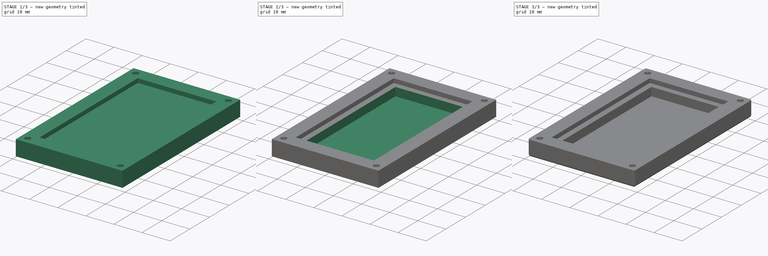
[diagram: build sequence overview — one tinted view per stage of 3, left to right]
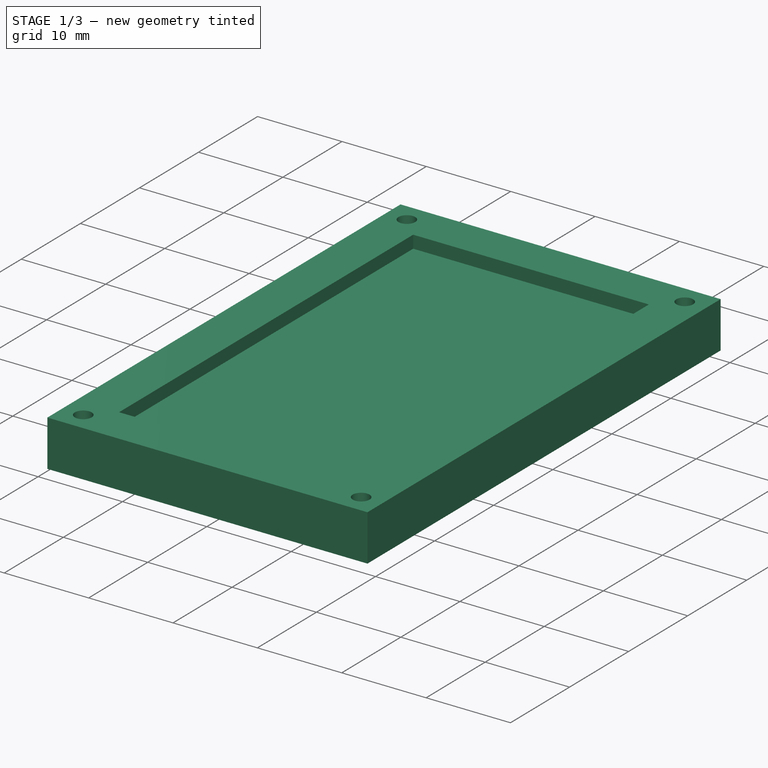
[diagram: stage 1 of 3 — iso view after this stage's code; geometry added in this stage tinted green]
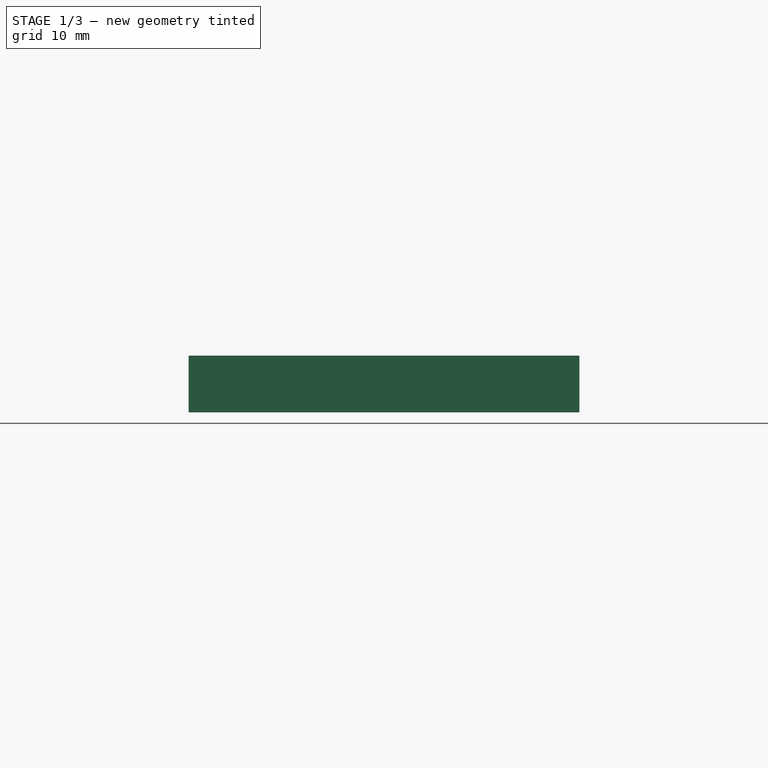
[diagram: stage 1 of 3 — front view after this stage's code; geometry added in this stage tinted green]
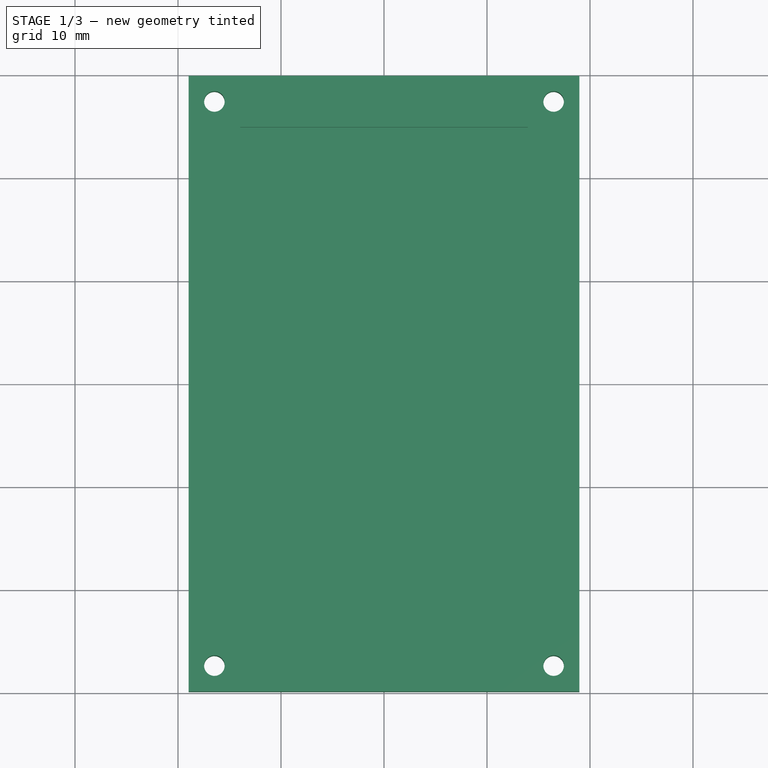
[diagram: stage 1 of 3 — top view after this stage's code; geometry added in this stage tinted green]
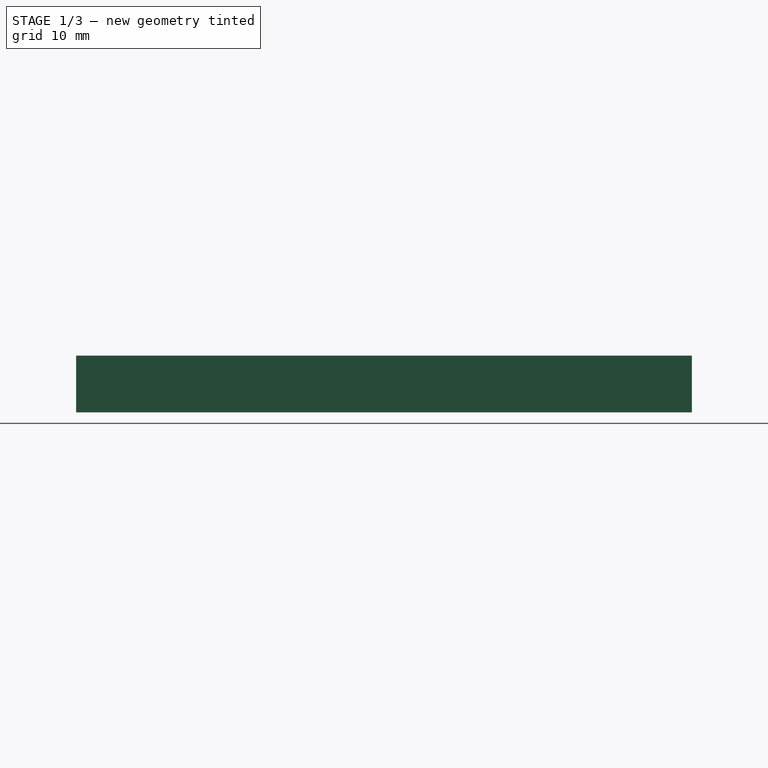
[diagram: stage 1 of 3 — right view after this stage's code; geometry added in this stage tinted green]
FCSTD DOCUMENT  (FreeCAD 0.18R16093 +53 (Git))
Label: lower_plate
License: All rights reserved
LicenseURL: http://en.wikipedia.org/wiki/All_rights_reserved
objects: Sketcher::SketchObject×4, PartDesign::Pocket×3, PartDesign::Pad×1, PartDesign::Fillet×1, PartDesign::Body×1
note: 14 computed .brp shape members not serialized (recipe doc carries the construction recipe); baked Part::Feature solids carry a one-line shape summary decoded from their .brp

FEATURE [Sketcher::SketchObject] Sketch001  label="Sketch"
  MapMode = 5
  Support = -> [XY_Plane]
  sketch-geometry (8):
    g0: LineSegment StartX=-18.97 StartY=29.892 StartZ=0 EndX=18.97 EndY=29.892 EndZ=0
    g1: LineSegment StartX=18.97 StartY=29.892 StartZ=0 EndX=18.97 EndY=-29.892 EndZ=0
    g2: LineSegment StartX=18.97 StartY=-29.892 StartZ=0 EndX=-18.97 EndY=-29.892 EndZ=0
    g3: LineSegment StartX=-18.97 StartY=-29.892 StartZ=0 EndX=-18.97 EndY=29.892 EndZ=0
    g4: Circle CenterX=-16.47 CenterY=27.392 CenterZ=0 NormalX=0 NormalY=0 NormalZ=1 AngleXU=0 Radius=1
    g5: Circle CenterX=16.47 CenterY=27.392 CenterZ=0 NormalX=0 NormalY=0 NormalZ=1 AngleXU=0 Radius=1
    g6: Circle CenterX=-16.47 CenterY=-27.392 CenterZ=0 NormalX=0 NormalY=0 NormalZ=1 AngleXU=0 Radius=1
    g7: Circle CenterX=16.47 CenterY=-27.392 CenterZ=0 NormalX=0 NormalY=0 NormalZ=1 AngleXU=0 Radius=1
  constraints (24):
    c: Coincident(g0,g1)
    c: Coincident(g1,g2)
    c: Coincident(g2,g3)
    c: Coincident(g3,g0)
    c: Horizontal(g0)
    c: Horizontal(g2)
    c: Vertical(g1)
    c: Vertical(g3)
    c: DistanceX(g0,g0) = 37.94
    c: DistanceX(g0,g-1) = 18.97
    c: DistanceY(g1,g1) = 59.784
    c: DistanceY(g1,g-1) = 29.892
    c: Equal(g4,g5)
    c: Equal(g4,g6)
    c: Equal(g4,g7)
    c: DistanceX(g0,g4) = 2.5
    c: DistanceY(g4,g0) = 2.5
    c: DistanceX(g5,g0) = 2.5
    c: DistanceY(g5,g0) = 2.5
    c: DistanceX(g2,g6) = 2.5
    c: DistanceX(g7,g1) = 2.5
    c: DistanceY(g2,g6) = 2.5
    c: DistanceY(g1,g7) = 2.5
    c: Radius(g4) = 1
FEATURE [PartDesign::Pad] Pad
  Length = 5.5
  Length2 = 100
  Profile = -> Sketch001
  Type = 0
FEATURE [Sketcher::SketchObject] Sketch002  label="Sketch001"
  MapMode = 5
  Placement = pos=(0,0,5.5) rot=(0,0,1;0rad)
  Support = -> [Pad]
  sketch-geometry (4):
    g0: LineSegment StartX=-13.97 StartY=24.892 StartZ=0 EndX=13.97 EndY=24.892 EndZ=0
    g1: LineSegment StartX=13.97 StartY=24.892 StartZ=0 EndX=13.97 EndY=-24.892 EndZ=0
    g2: LineSegment StartX=13.97 StartY=-24.892 StartZ=0 EndX=-13.97 EndY=-24.892 EndZ=0
    g3: LineSegment StartX=-13.97 StartY=-24.892 StartZ=0 EndX=-13.97 EndY=24.892 EndZ=0
  constraints (12):
    c: Coincident(g0,g1)
    c: Coincident(g1,g2)
    c: Coincident(g2,g3)
    c: Coincident(g3,g0)
    c: Horizontal(g0)
    c: Horizontal(g2)
    c: Vertical(g1)
    c: Vertical(g3)
    c: DistanceX(g0,g0) = 27.94
    c: DistanceY(g1,g1) = 49.784
    c: DistanceX(g0,g-1) = 13.97
    c: DistanceY(g-1,g0) = 24.892
FEATURE [PartDesign::Pocket] Pocket
  BaseFeature = -> Pad
  Length = 1.5
  Length2 = 100
  Profile = -> Sketch002
  Type = 0
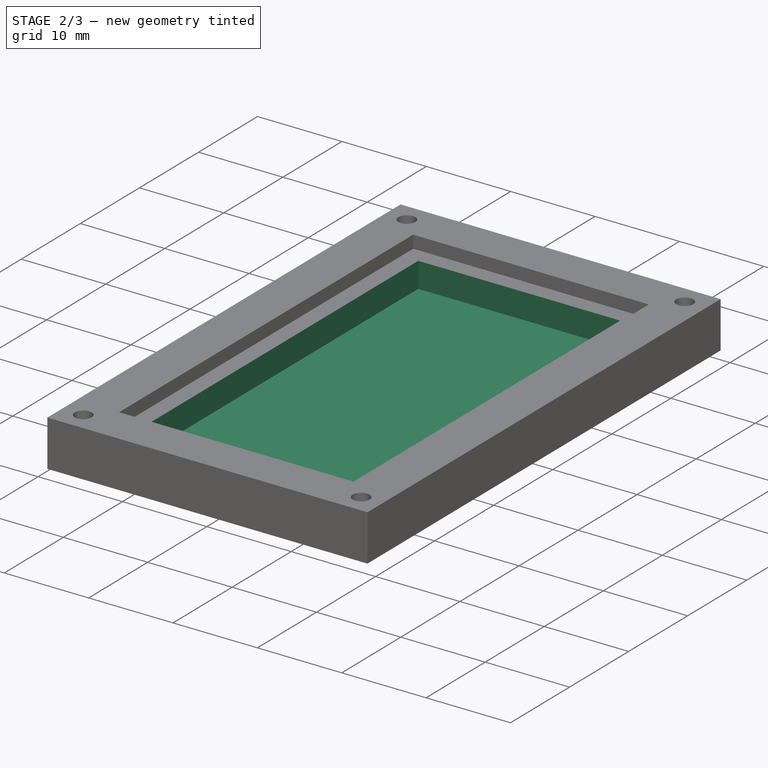
[diagram: stage 2 of 3 — iso view after this stage's code; geometry added in this stage tinted green]
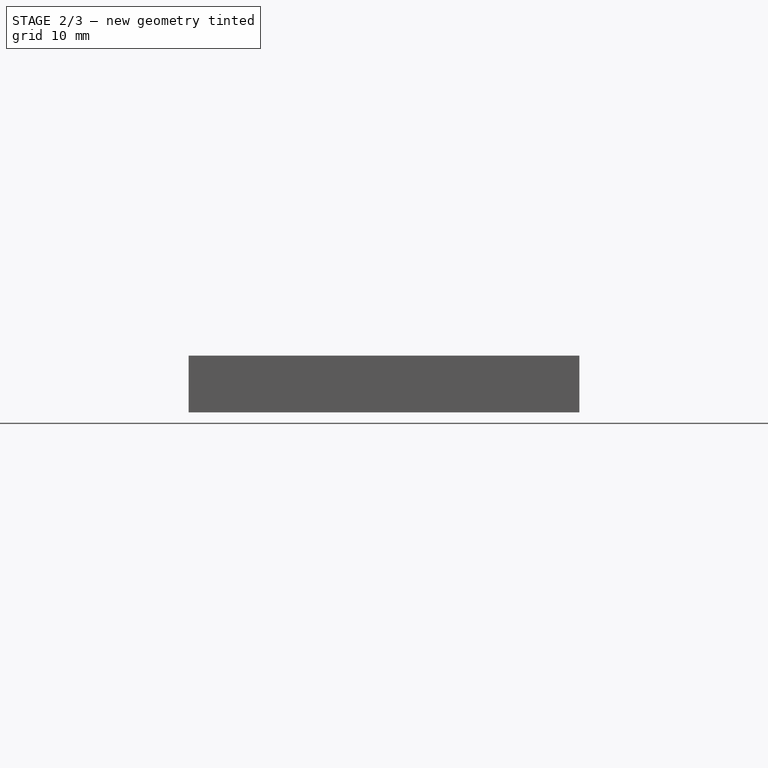
[diagram: stage 2 of 3 — front view after this stage's code; geometry added in this stage tinted green]
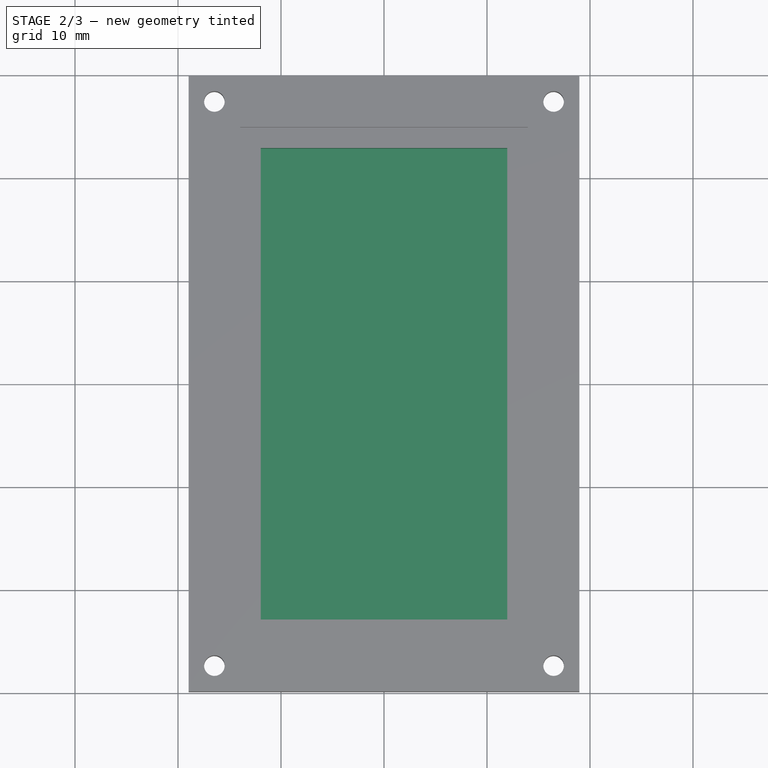
[diagram: stage 2 of 3 — top view after this stage's code; geometry added in this stage tinted green]
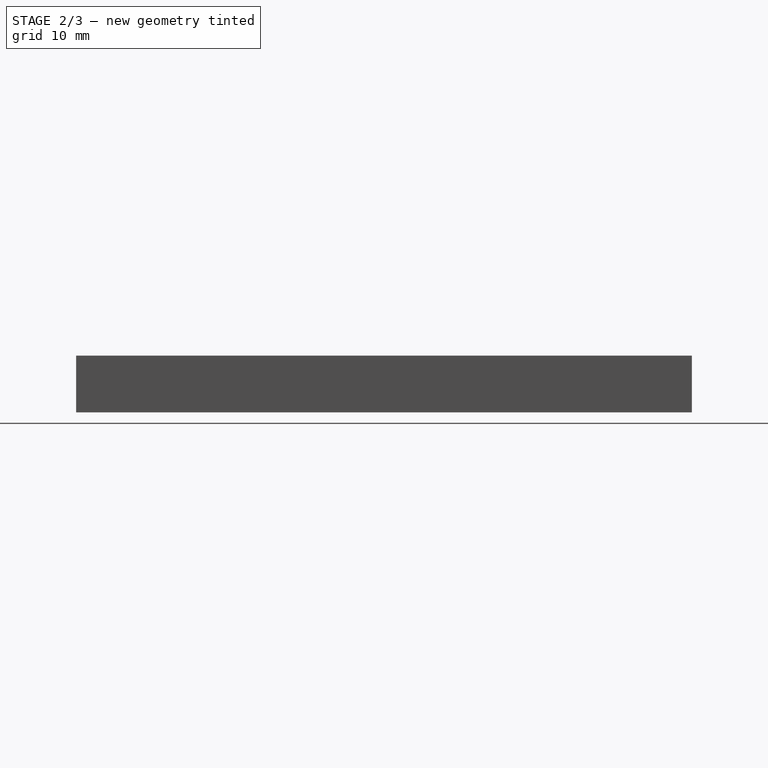
[diagram: stage 2 of 3 — right view after this stage's code; geometry added in this stage tinted green]
FEATURE [Sketcher::SketchObject] Sketch  label="Sketch002"
  MapMode = 5
  Placement = pos=(0,0,4) rot=(0,0,1;0rad)
  Support = -> [Pocket]
  sketch-geometry (4):
    g0: LineSegment StartX=-11.97 StartY=22.892 StartZ=0 EndX=11.97 EndY=22.892 EndZ=0
    g1: LineSegment StartX=11.97 StartY=22.892 StartZ=0 EndX=11.97 EndY=-22.892 EndZ=0
    g2: LineSegment StartX=11.97 StartY=-22.892 StartZ=0 EndX=-11.97 EndY=-22.892 EndZ=0
    g3: LineSegment StartX=-11.97 StartY=-22.892 StartZ=0 EndX=-11.97 EndY=22.892 EndZ=0
  constraints (12):
    c: Coincident(g0,g1)
    c: Coincident(g1,g2)
    c: Coincident(g2,g3)
    c: Coincident(g3,g0)
    c: Horizontal(g0)
    c: Horizontal(g2)
    c: Vertical(g1)
    c: Vertical(g3)
    c: DistanceX(g0,g0) = 23.94
    c: DistanceX(g0,g-1) = 11.97
    c: DistanceY(g1,g1) = 45.784
    c: DistanceY(g1,g-1) = 22.892
FEATURE [PartDesign::Pocket] Pocket001
  BaseFeature = -> Pocket
  Length = 3
  Length2 = 100
  Profile = -> Sketch
  Type = 0
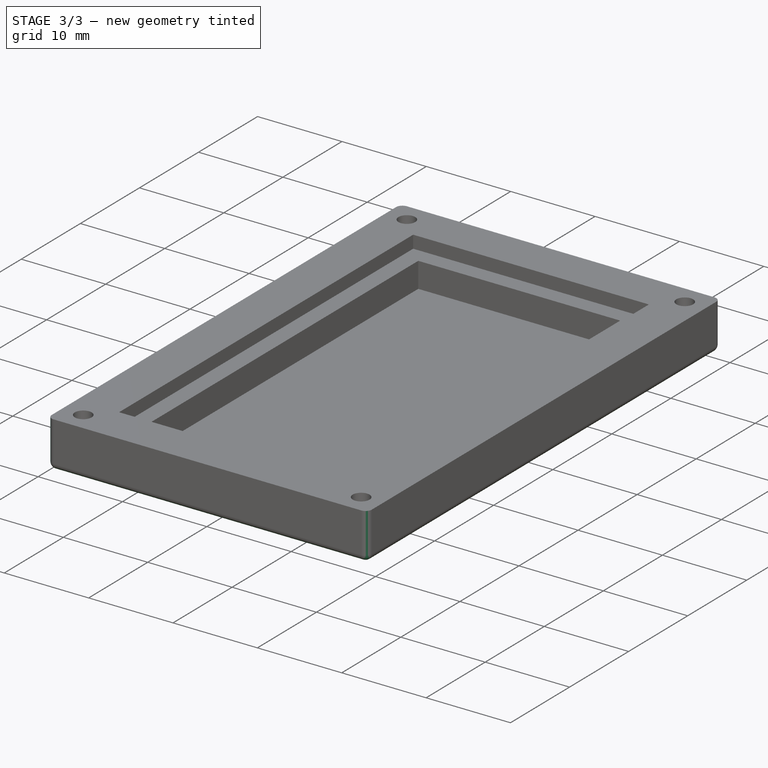
[diagram: stage 3 of 3 — iso view after this stage's code; geometry added in this stage tinted green]
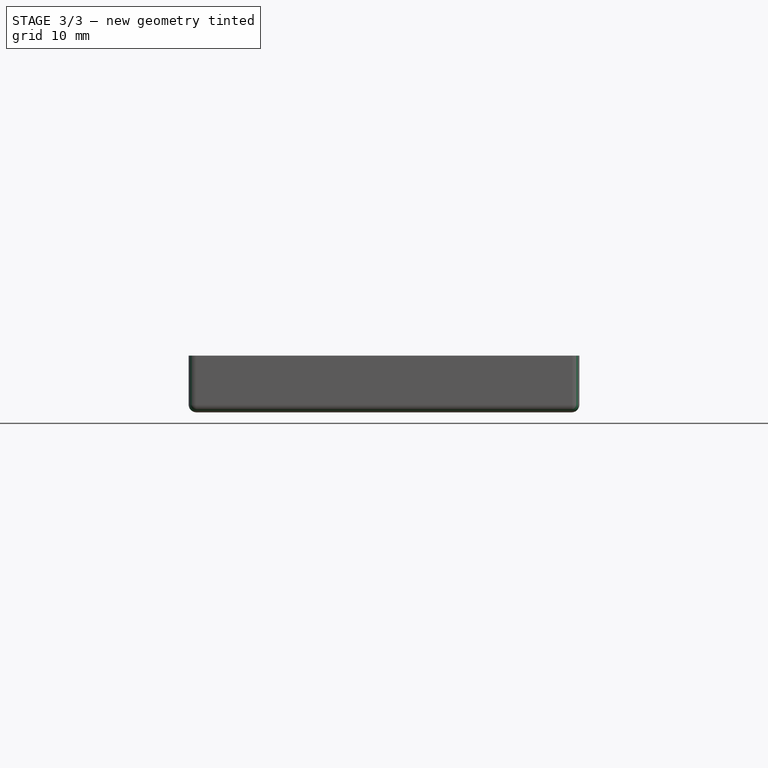
[diagram: stage 3 of 3 — front view after this stage's code; geometry added in this stage tinted green]
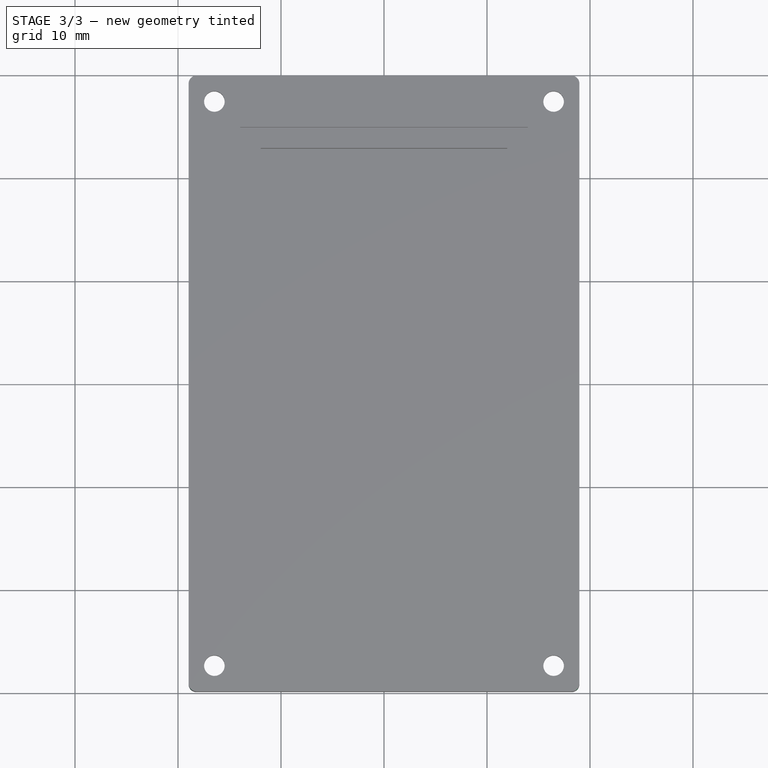
[diagram: stage 3 of 3 — top view after this stage's code; geometry added in this stage tinted green]
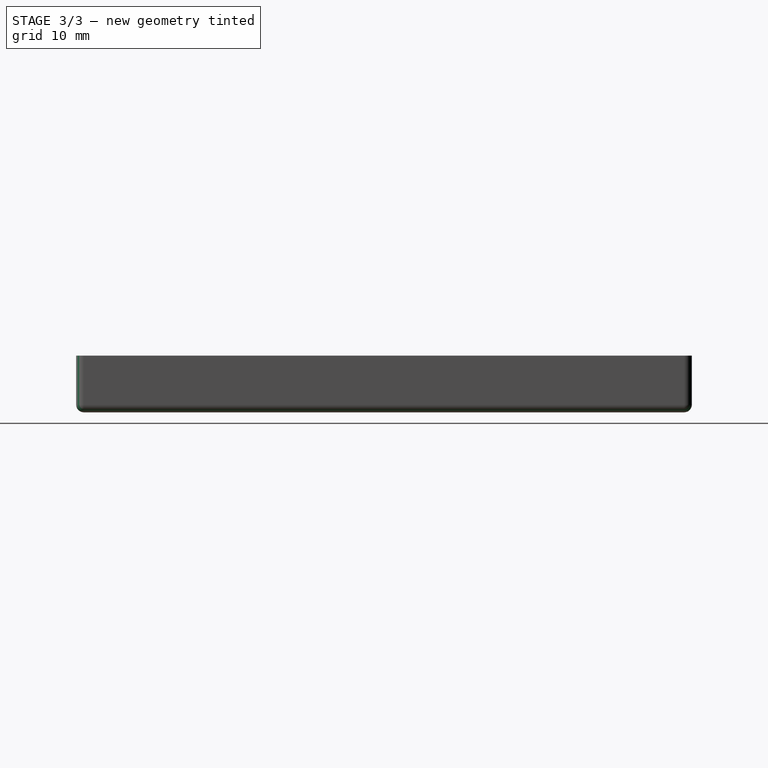
[diagram: stage 3 of 3 — right view after this stage's code; geometry added in this stage tinted green]
FEATURE [Sketcher::SketchObject] Sketch003
  MapMode = 5
  Placement = pos=(0,0,0) rot=(1,0,0;3.14159rad)
  Support = -> [Pocket001]
  sketch-geometry (28):
    g0: LineSegment StartX=-15.72 StartY=26.093 StartZ=0 EndX=-14.97 EndY=27.392 EndZ=0
    g1: LineSegment StartX=-14.97 StartY=27.392 StartZ=0 EndX=-15.72 EndY=28.691 EndZ=0
    g2: LineSegment StartX=-15.72 StartY=28.691 StartZ=0 EndX=-17.22 EndY=28.691 EndZ=0
    g3: LineSegment StartX=-17.22 StartY=28.691 StartZ=0 EndX=-17.97 EndY=27.392 EndZ=0
    g4: LineSegment StartX=-17.97 StartY=27.392 StartZ=0 EndX=-17.22 EndY=26.093 EndZ=0
    g5: LineSegment StartX=-17.22 StartY=26.093 StartZ=0 EndX=-15.72 EndY=26.093 EndZ=0
    g6: Circle [constr] CenterX=-16.47 CenterY=27.392 CenterZ=0 NormalX=0 NormalY=0 NormalZ=1 AngleXU=0 Radius=1.5
    g7: LineSegment StartX=17.22 StartY=26.093 StartZ=0 EndX=17.97 EndY=27.392 EndZ=0
    g8: LineSegment StartX=17.97 StartY=27.392 StartZ=0 EndX=17.22 EndY=28.691 EndZ=0
    g9: LineSegment StartX=17.22 StartY=28.691 StartZ=0 EndX=15.72 EndY=28.691 EndZ=0
    g10: LineSegment StartX=15.72 StartY=28.691 StartZ=0 EndX=14.97 EndY=27.392 EndZ=0
    g11: LineSegment StartX=14.97 StartY=27.392 StartZ=0 EndX=15.72 EndY=26.093 EndZ=0
    g12: LineSegment StartX=15.72 StartY=26.093 StartZ=0 EndX=17.22 EndY=26.093 EndZ=0
    g13: Circle [constr] CenterX=16.47 CenterY=27.392 CenterZ=0 NormalX=0 NormalY=0 NormalZ=1 AngleXU=0 Radius=1.5
    g14: LineSegment StartX=-15.72 StartY=-28.691 StartZ=0 EndX=-14.97 EndY=-27.392 EndZ=0
    g15: LineSegment StartX=-14.97 StartY=-27.392 StartZ=0 EndX=-15.72 EndY=-26.093 EndZ=0
    g16: LineSegment StartX=-15.72 StartY=-26.093 StartZ=0 EndX=-17.22 EndY=-26.093 EndZ=0
    g17: LineSegment StartX=-17.22 StartY=-26.093 StartZ=0 EndX=-17.97 EndY=-27.392 EndZ=0
    g18: LineSegment StartX=-17.97 StartY=-27.392 StartZ=0 EndX=-17.22 EndY=-28.691 EndZ=0
    g19: LineSegment StartX=-17.22 StartY=-28.691 StartZ=0 EndX=-15.72 EndY=-28.691 EndZ=0
    g20: Circle [constr] CenterX=-16.47 CenterY=-27.392 CenterZ=0 NormalX=0 NormalY=0 NormalZ=1 AngleXU=0 Radius=1.5
    g21: LineSegment StartX=17.22 StartY=-28.691 StartZ=0 EndX=17.97 EndY=-27.392 EndZ=0
    g22: LineSegment StartX=17.97 StartY=-27.392 StartZ=0 EndX=17.22 EndY=-26.093 EndZ=0
    g23: LineSegment StartX=17.22 StartY=-26.093 StartZ=0 EndX=15.72 EndY=-26.093 EndZ=0
    g24: LineSegment StartX=15.72 StartY=-26.093 StartZ=0 EndX=14.97 EndY=-27.392 EndZ=0
    g25: LineSegment StartX=14.97 StartY=-27.392 StartZ=0 EndX=15.72 EndY=-28.691 EndZ=0
    g26: LineSegment StartX=15.72 StartY=-28.691 StartZ=0 EndX=17.22 EndY=-28.691 EndZ=0
    g27: Circle [constr] CenterX=16.47 CenterY=-27.392 CenterZ=0 NormalX=0 NormalY=0 NormalZ=1 AngleXU=0 Radius=1.5
  constraints (68):
    c: Coincident(g0,g1)
    c: Coincident(g1,g2)
    c: Coincident(g2,g3)
    c: Coincident(g3,g4)
    c: Coincident(g4,g5)
    c: Coincident(g5,g0)
    c: Equal(g0, g1-g5) x5
    c: PointOnObject(g0,g6)
    c: PointOnObject(g1,g6)
    c: PointOnObject(g2,g6)
    c: PointOnObject(g3,g6)
    c: PointOnObject(g4,g6)
    c: PointOnObject(g5,g6)
    c: DistanceX(g6,g-1) = 16.47
    c: Radius(g6) = 1.5
    c: Parallel(g5,g-1)
    c: Coincident(g7,g8)
    c: Coincident(g8,g9)
    c: Coincident(g9,g10)
    c: Coincident(g10,g11)
    c: Coincident(g11,g12)
    c: Coincident(g12,g7)
    c: Equal(g7, g8-g12) x5
    c: PointOnObject(g7,g13)
    c: PointOnObject(g8,g13)
    c: PointOnObject(g9,g13)
    c: PointOnObject(g10,g13)
    c: PointOnObject(g11,g13)
    c: PointOnObject(g12,g13)
    c: Parallel(g12,g-1)
    c: Equal(g6,g13)
    c: Coincident(g14,g15)
    c: Coincident(g15,g16)
    c: Coincident(g16,g17)
    c: Coincident(g17,g18)
    c: Coincident(g18,g19)
    c: Coincident(g19,g14)
    c: Equal(g14, g15-g19) x5
    c: PointOnObject(g14,g20)
    c: PointOnObject(g15,g20)
    c: PointOnObject(g16,g20)
    c: PointOnObject(g17,g20)
    c: PointOnObject(g18,g20)
    c: PointOnObject(g19,g20)
    c: Coincident(g21,g22)
    c: Coincident(g22,g23)
    c: Coincident(g23,g24)
    c: Coincident(g24,g25)
    c: Coincident(g25,g26)
    c: Coincident(g26,g21)
    c: Equal(g21, g22-g26) x5
    c: PointOnObject(g21,g27)
    c: PointOnObject(g22,g27)
    c: PointOnObject(g23,g27)
    c: PointOnObject(g24,g27)
    c: PointOnObject(g25,g27)
    c: PointOnObject(g26,g27)
    c: Parallel(g16,g-1)
    c: Parallel(g23,g-1)
    c: Equal(g6,g20)
    c: Equal(g6,g27)
    c: DistanceX(g-1,g13) = 16.47
    c: DistanceX(g20,g-1) = 16.47
    c: DistanceX(g-1,g27) = 16.47
    c: DistanceY(g-1,g6) = 27.392
    c: DistanceY(g-1,g13) = 27.392
    c: DistanceY(g20,g-1) = 27.392
    c: DistanceY(g27,g-1) = 27.392
FEATURE [PartDesign::Pocket] Pocket002
  BaseFeature = -> Pocket001
  Length = 3
  Length2 = 100
  Profile = -> Sketch003
  Type = 0
FEATURE [PartDesign::Fillet] Fillet  label="lower_plate_complete_w_fillet"
  Base = -> Pocket002 [Edge11,Edge9,Edge2,Edge5,Edge8,Edge3,Edge1,Edge6]
  BaseFeature = -> Pocket002
  Radius = 0.75
FEATURE [PartDesign::Body] Body
  Group = -> [Sketch001,Pad,Sketch002,Pocket,Sketch,Pocket001,Sketch003,Pocket002,Fillet]
  Origin = -> Origin
  Tip = -> Fillet
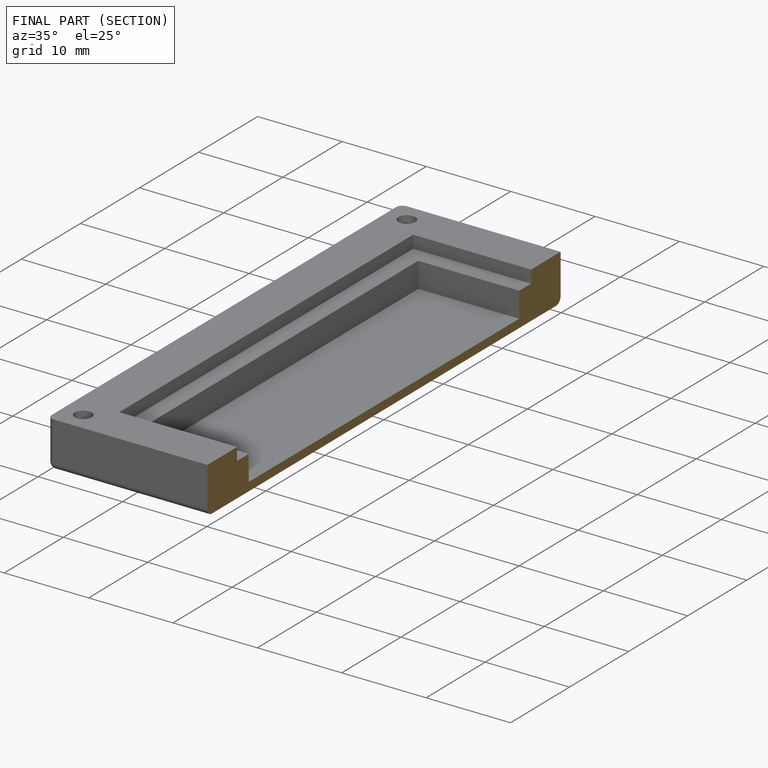
[diagram: finished part — half-section view (interior)]
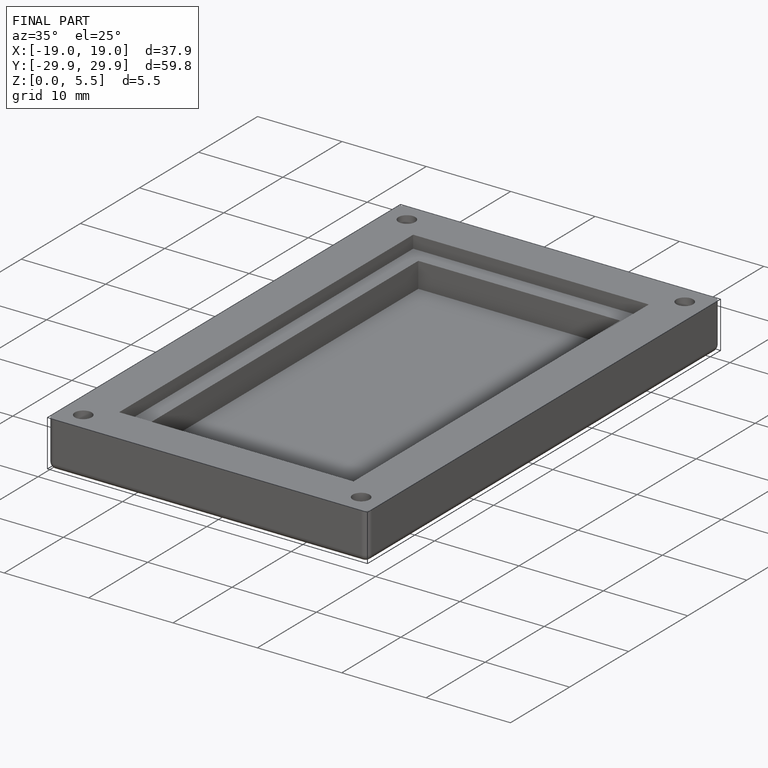
[diagram: finished part — iso view with bounding-box wireframe]
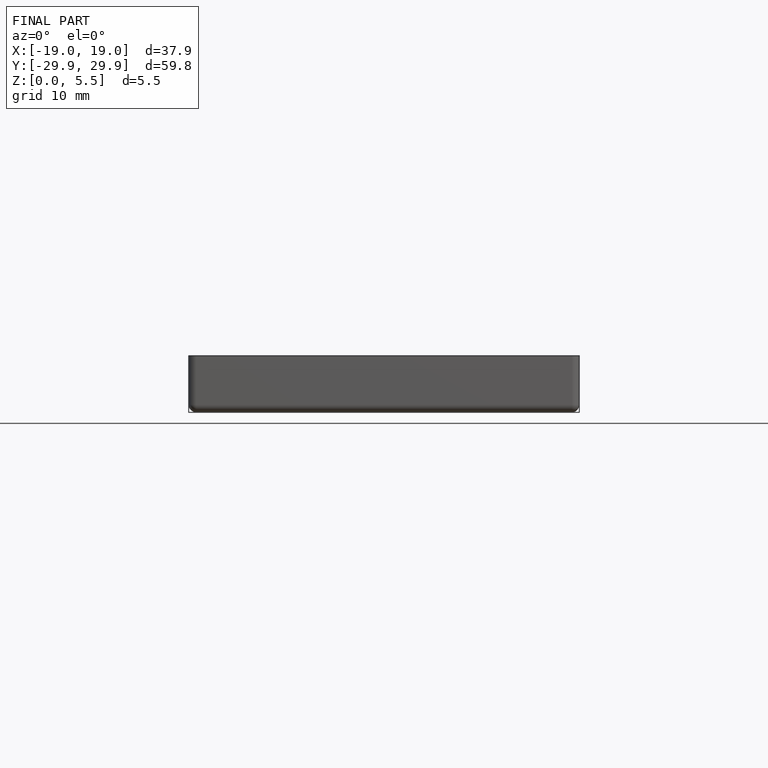
[diagram: finished part — front view with bounding-box wireframe]
